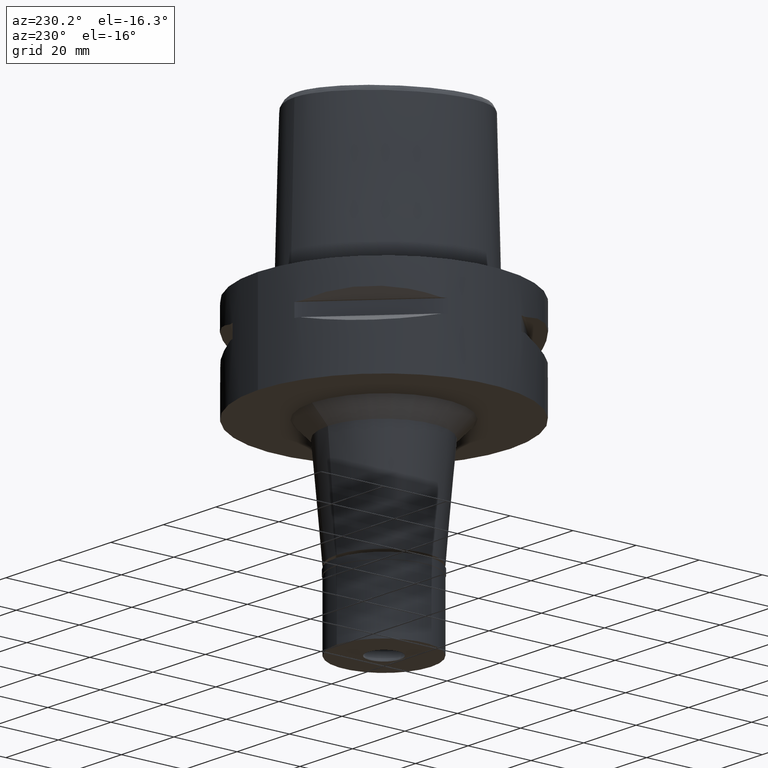
[diagram: clean part render]
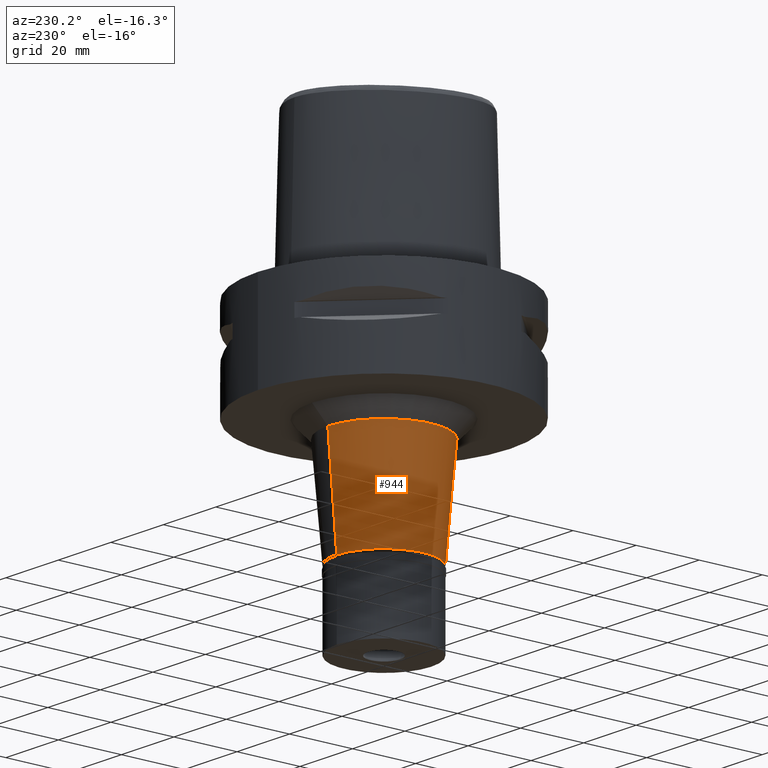
[diagram: same view with one face highlighted and labeled with its STEP entity id]
A machine part, auxiliary view. The second image highlights one B-rep face of the part: STEP entity #944.
In plain terms, the highlighted conical surface has half-angle 5 deg.
Its self-contained STEP definition (entity closure, byte-faithful):
#227 = CARTESIAN_POINT ( 'NONE',  ( 0.0000000000000000000, 17.81713496553000198, -35.00000000000000000 ) ) ;
#328 = CARTESIAN_POINT ( 'NONE',  ( 0.0000000000000000000, -17.81713496553000198, -35.00000000000000000 ) ) ;
#454 = AXIS2_PLACEMENT_3D ( 'NONE', #1974, #4307, #4642 ) ;
#455 = CARTESIAN_POINT ( 'NONE',  ( 0.0000000000000000000, 15.00000000000000000, -67.20000000000000284 ) ) ;
#665 = LINE ( 'NONE', #328, #2174 ) ;
#861 = DIRECTION ( 'NONE',  ( 0.0000000000000000000, -0.08715574274756596185, -0.9961946980917535388 ) ) ;
#944 = ADVANCED_FACE ( 'NONE', ( #3576 ), #2950, .T. ) ;
#986 = EDGE_LOOP ( 'NONE', ( #1499, #1992, #4357, #1121 ) ) ;
#1121 = ORIENTED_EDGE ( 'NONE', *, *, #1546, .T. ) ;
#1344 = LINE ( 'NONE', #2551, #3210 ) ;
#1356 = DIRECTION ( 'NONE',  ( 0.0000000000000000000, 1.000000000000000000, 0.0000000000000000000 ) ) ;
#1382 = EDGE_CURVE ( 'NONE', #5030, #2334, #2955, .T. ) ;
#1499 = ORIENTED_EDGE ( 'NONE', *, *, #1382, .T. ) ;
#1546 = EDGE_CURVE ( 'NONE', #2324, #5030, #1344, .T. ) ;
#1974 = CARTESIAN_POINT ( 'NONE',  ( 0.0000000000000000000, 0.0000000000000000000, -51.10000000000000142 ) ) ;
#1992 = ORIENTED_EDGE ( 'NONE', *, *, #4845, .F. ) ;
#2006 = DIRECTION ( 'NONE',  ( 0.0000000000000000000, 0.0000000000000000000, -1.000000000000000000 ) ) ;
#2062 = CARTESIAN_POINT ( 'NONE',  ( 0.0000000000000000000, 0.0000000000000000000, -35.00000000000000000 ) ) ;
#2174 = VECTOR ( 'NONE', #2995, 1000.000000000000000 ) ;
#2324 = VERTEX_POINT ( 'NONE', #227 ) ;
#2334 = VERTEX_POINT ( 'NONE', #2940 ) ;
#2350 = DIRECTION ( 'NONE',  ( 0.0000000000000000000, -1.000000000000000000, 0.0000000000000000000 ) ) ;
#2551 = CARTESIAN_POINT ( 'NONE',  ( 0.0000000000000000000, 17.81713496553000198, -35.00000000000000000 ) ) ;
#2623 = VERTEX_POINT ( 'NONE', #3912 ) ;
#2780 = CIRCLE ( 'NONE', #5095, 17.81713496553000198 ) ;
#2940 = CARTESIAN_POINT ( 'NONE',  ( 0.0000000000000000000, -15.00000000000000000, -67.20000000000000284 ) ) ;
#2950 = CONICAL_SURFACE ( 'NONE', #454, 16.40856748276999966, 0.08726646259969973729 ) ;
#2955 = CIRCLE ( 'NONE', #4361, 15.00000000000000000 ) ;
#2995 = DIRECTION ( 'NONE',  ( 0.0000000000000000000, 0.08715574274756596185, -0.9961946980917535388 ) ) ;
#3210 = VECTOR ( 'NONE', #861, 1000.000000000000000 ) ;
#3333 = DIRECTION ( 'NONE',  ( 0.0000000000000000000, 0.0000000000000000000, 1.000000000000000000 ) ) ;
#3576 = FACE_OUTER_BOUND ( 'NONE', #986, .T. ) ;
#3912 = CARTESIAN_POINT ( 'NONE',  ( 0.0000000000000000000, -17.81713496553000198, -35.00000000000000000 ) ) ;
#4307 = DIRECTION ( 'NONE',  ( 0.0000000000000000000, 0.0000000000000000000, 1.000000000000000000 ) ) ;
#4357 = ORIENTED_EDGE ( 'NONE', *, *, #5005, .T. ) ;
#4361 = AXIS2_PLACEMENT_3D ( 'NONE', #4581, #3333, #1356 ) ;
#4581 = CARTESIAN_POINT ( 'NONE',  ( 0.0000000000000000000, 0.0000000000000000000, -67.20000000000000284 ) ) ;
#4642 = DIRECTION ( 'NONE',  ( 0.0000000000000000000, 1.000000000000000000, 0.0000000000000000000 ) ) ;
#4845 = EDGE_CURVE ( 'NONE', #2623, #2334, #665, .T. ) ;
#5005 = EDGE_CURVE ( 'NONE', #2623, #2324, #2780, .T. ) ;
#5030 = VERTEX_POINT ( 'NONE', #455 ) ;
#5095 = AXIS2_PLACEMENT_3D ( 'NONE', #2062, #2006, #2350 ) ;